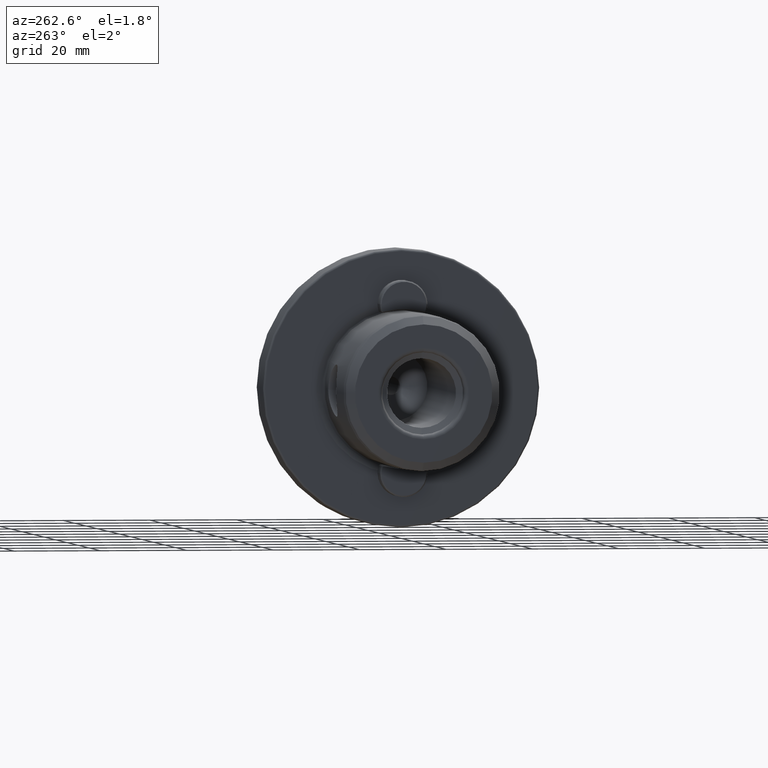
[diagram: clean part render]
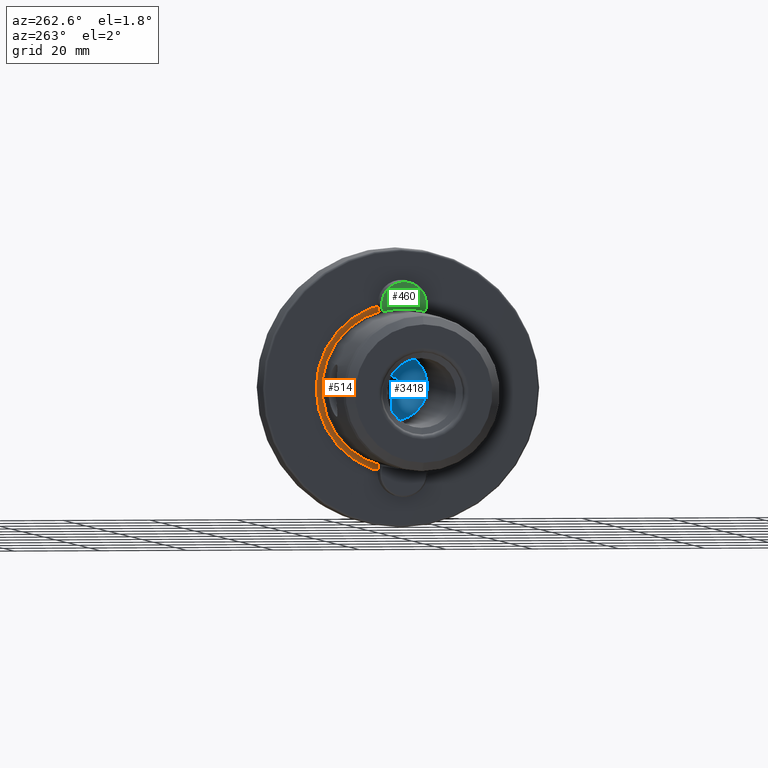
[diagram: same view with three faces highlighted in distinct colors, each labeled with its STEP entity id]
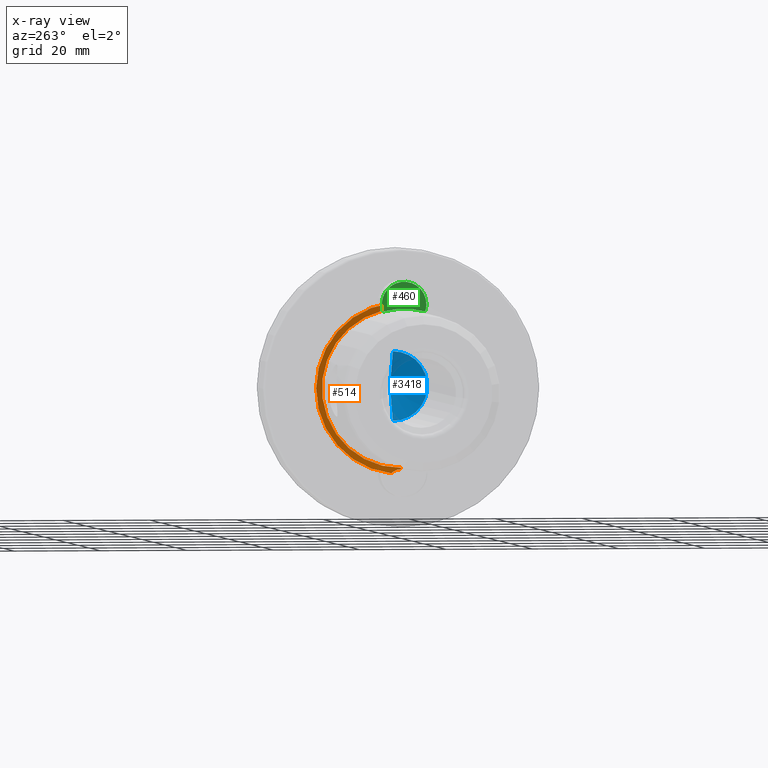
[diagram: x-ray of the same camera — body ghosted, the three highlighted faces saturated]
A machine part, auxiliary view with three faces highlighted in distinct colors.
The next image is the same camera in x-ray (body ghosted, the three faces saturated) — at least one of them is partly hidden behind the body in this view.
Their STEP definitions:

[orange] entity #514 — the highlighted conical surface has half-angle 82 deg.
#154 = DIRECTION ( 'NONE',  ( -1.000000000000000000, -0.0000000000000000000, -0.0000000000000000000 ) ) ;
#165 = CARTESIAN_POINT ( 'NONE',  ( 0.1941608412449405400, 0.0000000000000000000, 0.0000000000000000000 ) ) ;
#212 = DIRECTION ( 'NONE',  ( 0.0000000000000000000, 0.0000000000000000000, 1.000000000000000000 ) ) ;
#360 = AXIS2_PLACEMENT_3D ( 'NONE', #3688, #3589, #3199 ) ;
#361 = EDGE_CURVE ( 'NONE', #1902, #1896, #1851, .T. ) ;
#420 = EDGE_CURVE ( 'NONE', #1664, #1950, #1709, .T. ) ;
#436 = CARTESIAN_POINT ( 'NONE',  ( 0.1941608412449406000, 0.0000000000000000000, 18.33350386057605200 ) ) ;
#514 = ADVANCED_FACE ( 'NONE', ( #1446 ), #1277, .F. ) ;
#782 = B_SPLINE_CURVE_WITH_KNOTS ( 'NONE', 3,
 ( #4666, #4676, #4636, #4624, #4616, #4602, #4582, #4572, #4557, #4552 ),
 .UNSPECIFIED., .F., .F.,
 ( 4, 2, 2, 2, 4 ),
 ( 1.823844041911342400E-006, 0.0006368999790405268300, 0.001271976114039142500, 0.001907052249037757900, 0.002542128384036373300 ),
 .UNSPECIFIED. ) ;
#862 = ORIENTED_EDGE ( 'NONE', *, *, #361, .F. ) ;
#924 = ORIENTED_EDGE ( 'NONE', *, *, #2940, .F. ) ;
#987 = ORIENTED_EDGE ( 'NONE', *, *, #420, .T. ) ;
#994 = ORIENTED_EDGE ( 'NONE', *, *, #2967, .T. ) ;
#1026 = B_SPLINE_CURVE_WITH_KNOTS ( 'NONE', 3,
 ( #5125, #5131, #5110, #5099, #5092, #5082, #5079, #5058 ),
 .UNSPECIFIED., .F., .F.,
 ( 4, 2, 2, 4 ),
 ( 0.002542128384036375500, 0.003176550588579198200, 0.003810972793122021300, 0.005079817202207666800 ),
 .UNSPECIFIED. ) ;
#1056 = ORIENTED_EDGE ( 'NONE', *, *, #3010, .T. ) ;
#1067 = ORIENTED_EDGE ( 'NONE', *, *, #3042, .T. ) ;
#1277 = CONICAL_SURFACE ( 'NONE', #360, 19.71503003164294700, 1.431169986635351300 ) ;
#1392 = EDGE_LOOP ( 'NONE', ( #862, #924, #987, #994, #1056, #1067 ) ) ;
#1446 = FACE_OUTER_BOUND ( 'NONE', #1392, .T. ) ;
#1618 = CARTESIAN_POINT ( 'NONE',  ( 0.0000000000000000000, 0.0000000000000000000, 19.71503003164294700 ) ) ;
#1638 = VECTOR ( 'NONE', #1663, 1000.000000000000000 ) ;
#1663 = DIRECTION ( 'NONE',  ( -0.1391731009600643800, 0.0000000000000000000, 0.9902680687415704700 ) ) ;
#1664 = VERTEX_POINT ( 'NONE', #436 ) ;
#1709 = LINE ( 'NONE', #1618, #1638 ) ;
#1839 = VECTOR ( 'NONE', #4697, 1000.000000000000000 ) ;
#1851 = LINE ( 'NONE', #4372, #1839 ) ;
#1896 = VERTEX_POINT ( 'NONE', #5126 ) ;
#1902 = VERTEX_POINT ( 'NONE', #5107 ) ;
#1950 = VERTEX_POINT ( 'NONE', #4936 ) ;
#2112 = VERTEX_POINT ( 'NONE', #3996 ) ;
#2309 = CIRCLE ( 'NONE', #2913, 19.71503003164294700 ) ;
#2435 = CARTESIAN_POINT ( 'NONE',  ( 0.0000000000000000000, 2.304977676280618700, 19.57982346857170700 ) ) ;
#2913 = AXIS2_PLACEMENT_3D ( 'NONE', #4753, #4727, #4723 ) ;
#2940 = EDGE_CURVE ( 'NONE', #1664, #1902, #3167, .T. ) ;
#2967 = EDGE_CURVE ( 'NONE', #1950, #3290, #1026, .T. ) ;
#3010 = EDGE_CURVE ( 'NONE', #3290, #2112, #2309, .T. ) ;
#3042 = EDGE_CURVE ( 'NONE', #2112, #1896, #782, .T. ) ;
#3167 = CIRCLE ( 'NONE', #3192, 18.33350386057603700 ) ;
#3192 = AXIS2_PLACEMENT_3D ( 'NONE', #165, #154, #212 ) ;
#3199 = DIRECTION ( 'NONE',  ( 0.0000000000000000000, 0.0000000000000000000, 1.000000000000000000 ) ) ;
#3290 = VERTEX_POINT ( 'NONE', #2435 ) ;
#3589 = DIRECTION ( 'NONE',  ( -1.000000000000000000, -0.0000000000000000000, -0.0000000000000000000 ) ) ;
#3688 = CARTESIAN_POINT ( 'NONE',  ( 0.0000000000000000000, 0.0000000000000000000, 0.0000000000000000000 ) ) ;
#3996 = CARTESIAN_POINT ( 'NONE',  ( 0.0000000000000000000, 2.304977676280614700, -19.57982346857170000 ) ) ;
#4372 = CARTESIAN_POINT ( 'NONE',  ( 0.0000000000000000000, 2.414394842334547600E-015, -19.71503003164294700 ) ) ;
#4552 = CARTESIAN_POINT ( 'NONE',  ( 0.1497196151509382300, 2.283931942063423900E-015, -18.64971961515093600 ) ) ;
#4557 = CARTESIAN_POINT ( 'NONE',  ( 0.1497196151509384300, 0.2122868872702265400, -18.64971961515093600 ) ) ;
#4572 = CARTESIAN_POINT ( 'NONE',  ( 0.1462635047187019800, 0.4277680311011984900, -18.67055485128505100 ) ) ;
#4582 = CARTESIAN_POINT ( 'NONE',  ( 0.1328714928180851900, 0.8440853840601884000, -18.75174981222060200 ) ) ;
#4602 = CARTESIAN_POINT ( 'NONE',  ( 0.1229865936119342200, 1.046874243880914000, -18.81180348099160000 ) ) ;
#4616 = CARTESIAN_POINT ( 'NONE',  ( 0.09697764050582552400, 1.441598242119770200, -18.97127039903160700 ) ) ;
#4624 = CARTESIAN_POINT ( 'NONE',  ( 0.08087163185275857100, 1.632029429687769300, -19.07060691021076700 ) ) ;
#4636 = CARTESIAN_POINT ( 'NONE',  ( 0.04404991117515744800, 1.985849606086713900, -19.30040851884048100 ) ) ;
#4666 = CARTESIAN_POINT ( 'NONE',  ( 0.0000000000000000000, 2.304977676280614700, -19.57982346857170000 ) ) ;
#4676 = CARTESIAN_POINT ( 'NONE',  ( 0.02320697811132660000, 2.151331634853406600, -19.43164450869607800 ) ) ;
#4697 = DIRECTION ( 'NONE',  ( -0.1391731009600643800, 1.212728620682195500E-016, -0.9902680687415704700 ) ) ;
#4723 = DIRECTION ( 'NONE',  ( 0.0000000000000000000, 0.0000000000000000000, 1.000000000000000000 ) ) ;
#4727 = DIRECTION ( 'NONE',  ( -1.000000000000000000, -0.0000000000000000000, -0.0000000000000000000 ) ) ;
#4753 = CARTESIAN_POINT ( 'NONE',  ( 0.0000000000000000000, 0.0000000000000000000, 0.0000000000000000000 ) ) ;
#4936 = CARTESIAN_POINT ( 'NONE',  ( 0.1497196151509382300, 1.105687166280400700E-024, 18.64971961515093600 ) ) ;
#5058 = CARTESIAN_POINT ( 'NONE',  ( 0.0000000000000000000, 2.304977676280618700, 19.57982346857170700 ) ) ;
#5079 = CARTESIAN_POINT ( 'NONE',  ( 0.04637015887079728300, 1.997975561801456700, 19.28374519945019800 ) ) ;
#5082 = CARTESIAN_POINT ( 'NONE',  ( 0.08430973384727501200, 1.634404264066771500, 19.04893420505875000 ) ) ;
#5092 = CARTESIAN_POINT ( 'NONE',  ( 0.1229715228503667800, 1.046825339769439800, 18.81189893387641400 ) ) ;
#5099 = CARTESIAN_POINT ( 'NONE',  ( 0.1330270250183356300, 0.8406822108815007500, 18.75080474029460100 ) ) ;
#5107 = CARTESIAN_POINT ( 'NONE',  ( 0.1941608412449406000, 2.245206682001010200E-015, -18.33350386057605200 ) ) ;
#5110 = CARTESIAN_POINT ( 'NONE',  ( 0.1463819162726391600, 0.4226255428540614500, 18.66983906204839600 ) ) ;
#5125 = CARTESIAN_POINT ( 'NONE',  ( 0.1497196151509382300, 1.105687166280400700E-024, 18.64971961515093600 ) ) ;
#5126 = CARTESIAN_POINT ( 'NONE',  ( 0.1497196151509382300, 2.283931942063423900E-015, -18.64971961515093600 ) ) ;
#5131 = CARTESIAN_POINT ( 'NONE',  ( 0.1497196151509384000, 0.2120682979495092700, 18.64971961515093200 ) ) ;

[blue] entity #3418 — the highlighted conical surface has half-angle 59 deg.
#28 = EDGE_CURVE ( 'NONE', #3392, #3464, #2993, .T. ) ;
#94 = EDGE_CURVE ( 'NONE', #4530, #3330, #2680, .T. ) ;
#130 = EDGE_CURVE ( 'NONE', #356, #4530, #2540, .T. ) ;
#172 = DIRECTION ( 'NONE',  ( 0.0000000000000000000, 0.0000000000000000000, 1.000000000000000000 ) ) ;
#307 = DIRECTION ( 'NONE',  ( -1.000000000000000000, -0.0000000000000000000, -0.0000000000000000000 ) ) ;
#317 = EDGE_CURVE ( 'NONE', #3464, #3330, #2081, .T. ) ;
#356 = VERTEX_POINT ( 'NONE', #4398 ) ;
#697 = CARTESIAN_POINT ( 'NONE',  ( 15.00000000000000000, 9.797174393178825700E-016, -8.000000000000000000 ) ) ;
#763 = AXIS2_PLACEMENT_3D ( 'NONE', #4702, #307, #172 ) ;
#768 = AXIS2_PLACEMENT_3D ( 'NONE', #1647, #1699, #1624 ) ;
#806 = DIRECTION ( 'NONE',  ( -0.5150380749100578200, 1.049727191138616100E-016, -0.8571673007021102200 ) ) ;
#1023 = CARTESIAN_POINT ( 'NONE',  ( 18.54507765226264100, 0.0000000000000000000, 2.100000000000000100 ) ) ;
#1110 = AXIS2_PLACEMENT_3D ( 'NONE', #2419, #2629, #2432 ) ;
#1365 = CONICAL_SURFACE ( 'NONE', #768, 8.000000000000000000, 1.029744258676650300 ) ;
#1408 = CARTESIAN_POINT ( 'NONE',  ( 15.00000000000000000, 9.797174393178825700E-016, -8.000000000000000000 ) ) ;
#1624 = DIRECTION ( 'NONE',  ( 0.0000000000000000000, 0.0000000000000000000, 1.000000000000000000 ) ) ;
#1647 = CARTESIAN_POINT ( 'NONE',  ( 15.00000000000000000, 0.0000000000000000000, 0.0000000000000000000 ) ) ;
#1671 = CARTESIAN_POINT ( 'NONE',  ( 15.00000000000000000, 0.0000000000000000000, 8.000000000000000000 ) ) ;
#1689 = DIRECTION ( 'NONE',  ( -0.5150380749100578200, 0.0000000000000000000, 0.8571673007021102200 ) ) ;
#1699 = DIRECTION ( 'NONE',  ( -1.000000000000000000, -0.0000000000000000000, -0.0000000000000000000 ) ) ;
#1753 = ORIENTED_EDGE ( 'NONE', *, *, #130, .F. ) ;
#1810 = FACE_OUTER_BOUND ( 'NONE', #5071, .T. ) ;
#1819 = ORIENTED_EDGE ( 'NONE', *, *, #317, .T. ) ;
#1940 = ORIENTED_EDGE ( 'NONE', *, *, #2759, .F. ) ;
#2012 = CARTESIAN_POINT ( 'NONE',  ( 18.54507765226264100, 6.184466335694134100E-016, -2.100000000000000100 ) ) ;
#2081 = CIRCLE ( 'NONE', #763, 8.000000000000000000 ) ;
#2419 = CARTESIAN_POINT ( 'NONE',  ( 18.54507765226264100, 0.0000000000000000000, 0.0000000000000000000 ) ) ;
#2432 = DIRECTION ( 'NONE',  ( 0.0000000000000000000, 0.0000000000000000000, 1.000000000000000000 ) ) ;
#2540 = CIRCLE ( 'NONE', #1110, 2.100000000000000100 ) ;
#2629 = DIRECTION ( 'NONE',  ( -1.000000000000000000, -0.0000000000000000000, -0.0000000000000000000 ) ) ;
#2676 = VECTOR ( 'NONE', #1689, 999.9999999999998900 ) ;
#2680 = LINE ( 'NONE', #1671, #2676 ) ;
#2759 = EDGE_CURVE ( 'NONE', #3392, #356, #4857, .T. ) ;
#2853 = DIRECTION ( 'NONE',  ( -1.000000000000000000, -0.0000000000000000000, -0.0000000000000000000 ) ) ;
#2860 = CARTESIAN_POINT ( 'NONE',  ( 18.54507765226264100, 0.0000000000000000000, 0.0000000000000000000 ) ) ;
#2867 = DIRECTION ( 'NONE',  ( 0.0000000000000000000, 0.0000000000000000000, 1.000000000000000000 ) ) ;
#2933 = VECTOR ( 'NONE', #806, 999.9999999999998900 ) ;
#2993 = LINE ( 'NONE', #697, #2933 ) ;
#3227 = CARTESIAN_POINT ( 'NONE',  ( 15.00000000000000000, 0.0000000000000000000, 8.000000000000000000 ) ) ;
#3330 = VERTEX_POINT ( 'NONE', #3227 ) ;
#3392 = VERTEX_POINT ( 'NONE', #2012 ) ;
#3418 = ADVANCED_FACE ( 'NONE', ( #1810 ), #1365, .F. ) ;
#3464 = VERTEX_POINT ( 'NONE', #1408 ) ;
#3534 = ORIENTED_EDGE ( 'NONE', *, *, #94, .F. ) ;
#3871 = ORIENTED_EDGE ( 'NONE', *, *, #28, .T. ) ;
#4111 = AXIS2_PLACEMENT_3D ( 'NONE', #2860, #2853, #2867 ) ;
#4398 = CARTESIAN_POINT ( 'NONE',  ( 18.54507765226264100, -2.100000000000000100, 2.571758278209450300E-016 ) ) ;
#4530 = VERTEX_POINT ( 'NONE', #1023 ) ;
#4702 = CARTESIAN_POINT ( 'NONE',  ( 15.00000000000000000, 0.0000000000000000000, 0.0000000000000000000 ) ) ;
#4857 = CIRCLE ( 'NONE', #4111, 2.100000000000000100 ) ;
#5071 = EDGE_LOOP ( 'NONE', ( #1940, #3871, #1819, #3534, #1753 ) ) ;

[green] entity #460 — the highlighted planar face has unit normal (1, 0, -0).
#3 = AXIS2_PLACEMENT_3D ( 'NONE', #2436, #2430, #2426 ) ;
#78 = CARTESIAN_POINT ( 'NONE',  ( 12.00000000000000000, -2.075000000000000200, 5.174999999999996300 ) ) ;
#89 = DIRECTION ( 'NONE',  ( 0.0000000000000000000, 0.0000000000000000000, 1.000000000000000000 ) ) ;
#460 = ADVANCED_FACE ( 'NONE', ( #1656 ), #2048, .F. ) ;
#527 = AXIS2_PLACEMENT_3D ( 'NONE', #1879, #2612, #2605 ) ;
#675 = VERTEX_POINT ( 'NONE', #4733 ) ;
#873 = DIRECTION ( 'NONE',  ( 1.000000000000000000, 0.0000000000000000000, 0.0000000000000000000 ) ) ;
#1124 = AXIS2_PLACEMENT_3D ( 'NONE', #3674, #3654, #3651 ) ;
#1503 = ORIENTED_EDGE ( 'NONE', *, *, #2290, .T. ) ;
#1656 = FACE_OUTER_BOUND ( 'NONE', #2027, .T. ) ;
#1787 = CARTESIAN_POINT ( 'NONE',  ( 12.00000000000000000, -3.714464133553600200, 4.708849915849248700 ) ) ;
#1875 = VERTEX_POINT ( 'NONE', #5139 ) ;
#1879 = CARTESIAN_POINT ( 'NONE',  ( 12.00000000000000000, 1.649999999999999900, 0.0000000000000000000 ) ) ;
#2027 = EDGE_LOOP ( 'NONE', ( #3401, #3190, #4373, #1503, #2059, #2180 ) ) ;
#2048 = PLANE ( 'NONE',  #527 ) ;
#2059 = ORIENTED_EDGE ( 'NONE', *, *, #4355, .T. ) ;
#2127 = EDGE_CURVE ( 'NONE', #1875, #3672, #2571, .T. ) ;
#2180 = ORIENTED_EDGE ( 'NONE', *, *, #4443, .T. ) ;
#2290 = EDGE_CURVE ( 'NONE', #3672, #4709, #4065, .T. ) ;
#2426 = DIRECTION ( 'NONE',  ( 0.0000000000000000000, 0.0000000000000000000, 1.000000000000000000 ) ) ;
#2430 = DIRECTION ( 'NONE',  ( 1.000000000000000000, 0.0000000000000000000, 0.0000000000000000000 ) ) ;
#2436 = CARTESIAN_POINT ( 'NONE',  ( 12.00000000000000000, -2.075000000000000200, 0.0000000000000000000 ) ) ;
#2571 = CIRCLE ( 'NONE', #1124, 5.174999999999996300 ) ;
#2605 = DIRECTION ( 'NONE',  ( -0.0000000000000000000, 0.0000000000000000000, 1.000000000000000000 ) ) ;
#2612 = DIRECTION ( 'NONE',  ( -1.000000000000000000, 0.0000000000000000000, -0.0000000000000000000 ) ) ;
#2627 = CARTESIAN_POINT ( 'NONE',  ( 12.00000000000000000, -3.521161290322580400, -4.760172530735889800 ) ) ;
#2636 = DIRECTION ( 'NONE',  ( 1.000000000000000000, 0.0000000000000000000, 0.0000000000000000000 ) ) ;
#2646 = DIRECTION ( 'NONE',  ( 0.0000000000000000000, 0.0000000000000000000, 1.000000000000000000 ) ) ;
#3190 = ORIENTED_EDGE ( 'NONE', *, *, #4287, .T. ) ;
#3377 = CARTESIAN_POINT ( 'NONE',  ( 12.00000000000000000, -3.579298427621978800, -4.951536250564465100 ) ) ;
#3401 = ORIENTED_EDGE ( 'NONE', *, *, #4255, .T. ) ;
#3544 = CARTESIAN_POINT ( 'NONE',  ( 12.00000000000000000, -21.44999999999999900, 0.0000000000000000000 ) ) ;
#3566 = DIRECTION ( 'NONE',  ( -1.000000000000000000, -0.0000000000000000000, -0.0000000000000000000 ) ) ;
#3593 = DIRECTION ( 'NONE',  ( 0.0000000000000000000, 0.0000000000000000000, 1.000000000000000000 ) ) ;
#3633 = CIRCLE ( 'NONE', #3973, 0.1999999999999970700 ) ;
#3651 = DIRECTION ( 'NONE',  ( 0.0000000000000000000, 0.0000000000000000000, 1.000000000000000000 ) ) ;
#3654 = DIRECTION ( 'NONE',  ( 1.000000000000000000, 0.0000000000000000000, 0.0000000000000000000 ) ) ;
#3672 = VERTEX_POINT ( 'NONE', #78 ) ;
#3674 = CARTESIAN_POINT ( 'NONE',  ( 12.00000000000000000, -2.075000000000000200, 0.0000000000000000000 ) ) ;
#3712 = AXIS2_PLACEMENT_3D ( 'NONE', #3544, #3566, #3593 ) ;
#3973 = AXIS2_PLACEMENT_3D ( 'NONE', #5033, #5048, #5051 ) ;
#4035 = VERTEX_POINT ( 'NONE', #1787 ) ;
#4065 = CIRCLE ( 'NONE', #3, 5.174999999999996300 ) ;
#4090 = AXIS2_PLACEMENT_3D ( 'NONE', #4221, #873, #89 ) ;
#4120 = AXIS2_PLACEMENT_3D ( 'NONE', #2627, #2636, #2646 ) ;
#4221 = CARTESIAN_POINT ( 'NONE',  ( 12.00000000000000000, -2.075000000000000200, 0.0000000000000000000 ) ) ;
#4255 = EDGE_CURVE ( 'NONE', #675, #4920, #4947, .T. ) ;
#4265 = CARTESIAN_POINT ( 'NONE',  ( 12.00000000000000000, -3.579298427621980100, 4.951536250564465100 ) ) ;
#4287 = EDGE_CURVE ( 'NONE', #4920, #1875, #4622, .T. ) ;
#4355 = EDGE_CURVE ( 'NONE', #4709, #4035, #3633, .T. ) ;
#4373 = ORIENTED_EDGE ( 'NONE', *, *, #2127, .T. ) ;
#4443 = EDGE_CURVE ( 'NONE', #4035, #675, #4498, .T. ) ;
#4498 = CIRCLE ( 'NONE', #3712, 18.35000000000000100 ) ;
#4622 = CIRCLE ( 'NONE', #4090, 5.174999999999996300 ) ;
#4709 = VERTEX_POINT ( 'NONE', #4265 ) ;
#4733 = CARTESIAN_POINT ( 'NONE',  ( 12.00000000000000000, -3.714464133553604200, -4.708849915849250500 ) ) ;
#4920 = VERTEX_POINT ( 'NONE', #3377 ) ;
#4947 = CIRCLE ( 'NONE', #4120, 0.1999999999999961800 ) ;
#5033 = CARTESIAN_POINT ( 'NONE',  ( 12.00000000000000000, -3.521161290322580400, 4.760172530735889800 ) ) ;
#5048 = DIRECTION ( 'NONE',  ( 1.000000000000000000, 0.0000000000000000000, 0.0000000000000000000 ) ) ;
#5051 = DIRECTION ( 'NONE',  ( 0.0000000000000000000, 0.0000000000000000000, 1.000000000000000000 ) ) ;
#5139 = CARTESIAN_POINT ( 'NONE',  ( 12.00000000000000000, -2.074999999999999700, -5.174999999999996300 ) ) ;